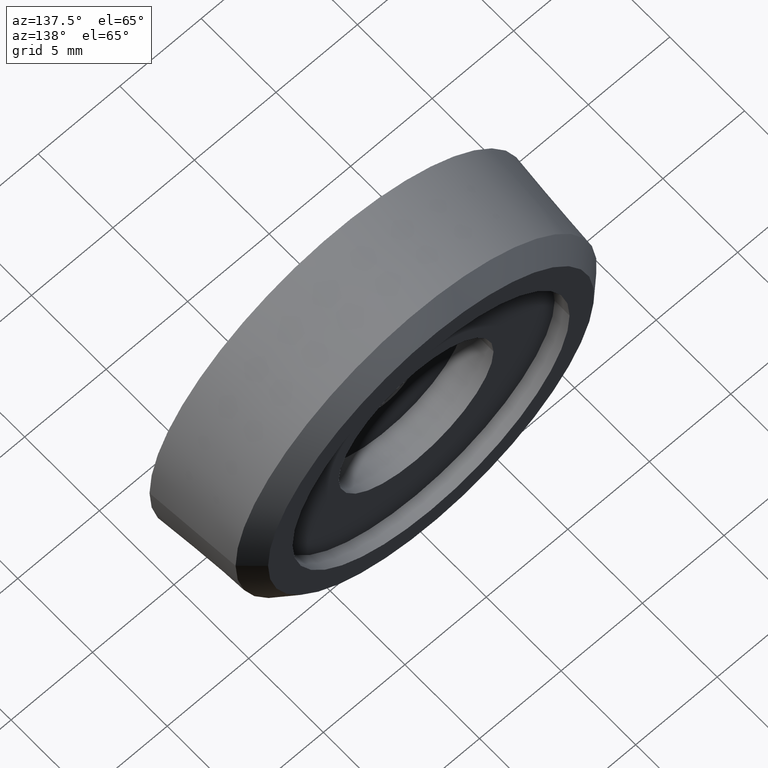
[diagram: clean part render]
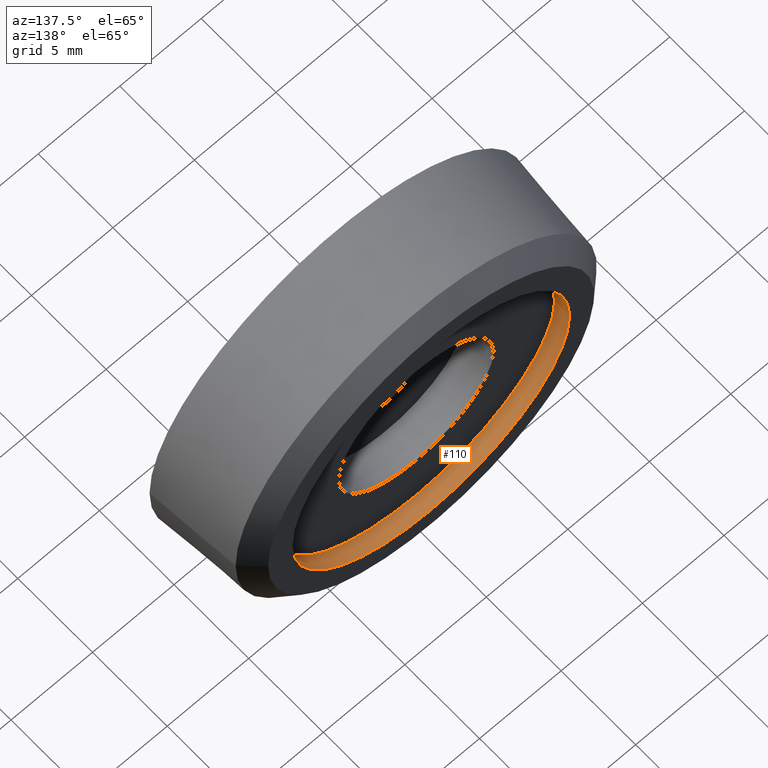
[diagram: same view with one face highlighted and labeled with its STEP entity id]
A machine part, auxiliary view. The second image highlights one B-rep face of the part: STEP entity #110.
In plain terms, the highlighted cylindrical surface (bore or boss wall) has radius 8.5 mm, axis along (0, 1, 0).
Its self-contained STEP definition (entity closure, byte-faithful):
#16=CYLINDRICAL_SURFACE('',#129,8.5);
#27=FACE_BOUND('',#51,.T.);
#36=FACE_OUTER_BOUND('',#50,.T.);
#50=EDGE_LOOP('',(#95));
#51=EDGE_LOOP('',(#96));
#60=CIRCLE('',#120,8.5);
#64=CIRCLE('',#127,8.5);
#69=VERTEX_POINT('',#179);
#73=VERTEX_POINT('',#190);
#78=EDGE_CURVE('',#69,#69,#60,.T.);
#82=EDGE_CURVE('',#73,#73,#64,.T.);
#95=ORIENTED_EDGE('',*,*,#78,.F.);
#96=ORIENTED_EDGE('',*,*,#82,.F.);
#110=ADVANCED_FACE('',(#36,#27),#16,.F.);
#120=AXIS2_PLACEMENT_3D('',#180,#144,#145);
#127=AXIS2_PLACEMENT_3D('',#191,#158,#159);
#129=AXIS2_PLACEMENT_3D('',#194,#162,#163);
#144=DIRECTION('center_axis',(0.,-1.,0.));
#145=DIRECTION('ref_axis',(-1.,0.,0.));
#158=DIRECTION('center_axis',(0.,1.,0.));
#159=DIRECTION('ref_axis',(-1.,0.,0.));
#162=DIRECTION('center_axis',(0.,1.,0.));
#163=DIRECTION('ref_axis',(-1.,0.,0.));
#179=CARTESIAN_POINT('',(-8.5,6.3,0.));
#180=CARTESIAN_POINT('Origin',(0.,6.3,0.));
#190=CARTESIAN_POINT('',(-8.5,5.3,0.));
#191=CARTESIAN_POINT('Origin',(0.,5.3,0.));
#194=CARTESIAN_POINT('Origin',(0.,5.8,0.));